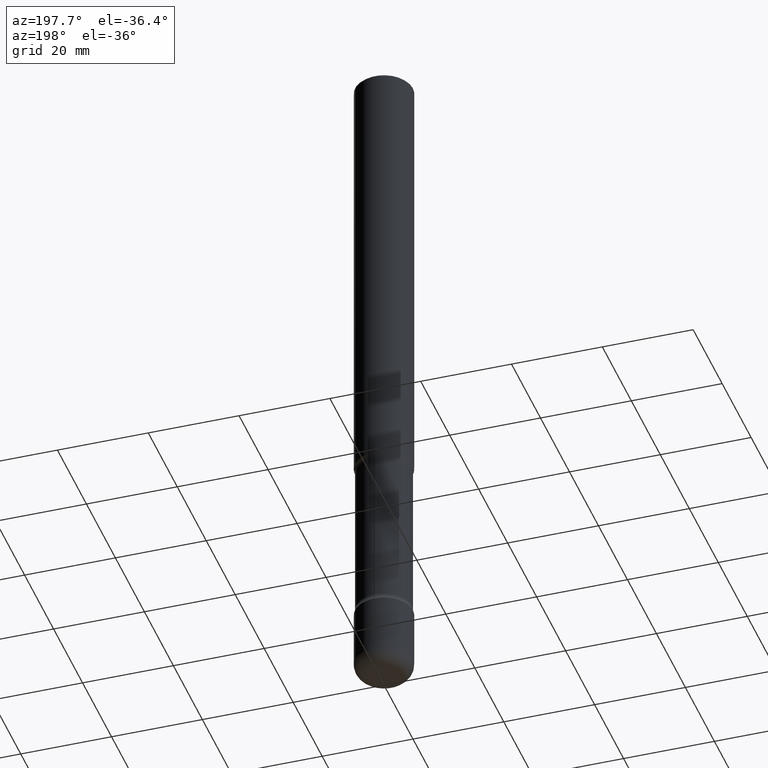
[diagram: clean part render]
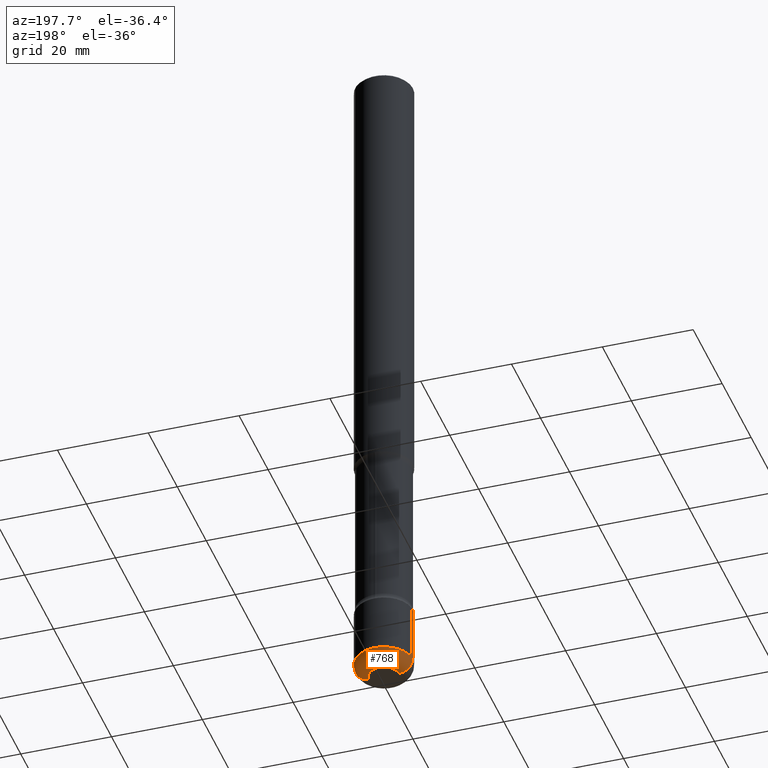
[diagram: same view with one face highlighted and labeled with its STEP entity id]
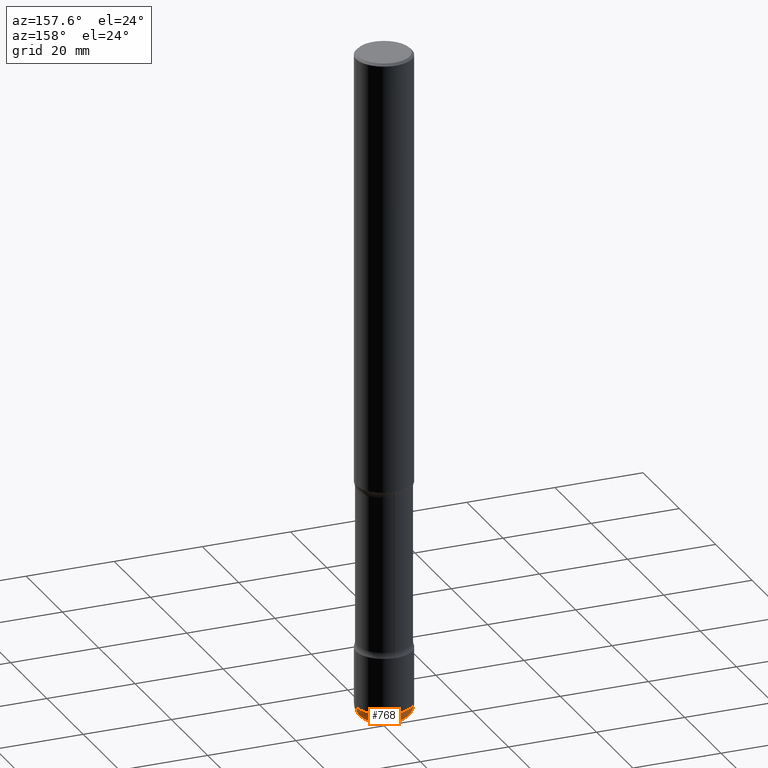
[diagram: same view with one face highlighted and labeled with its STEP entity id]
A machine part, auxiliary view. The second image highlights one B-rep face of the part: STEP entity #768.
A second angle (auxiliary view) of the same face is appended — the face is thin or edge-on in the first view.
In plain terms, the highlighted toroidal blend (fillet) surface has major radius 3.302 mm and minor (blend) radius 3.048 mm.
Its self-contained STEP definition (entity closure, byte-faithful):
#12 = EDGE_CURVE ( 'NONE', #544, #586, #197, .T. ) ;
#27 = EDGE_CURVE ( 'NONE', #544, #469, #364, .T. ) ;
#39 = CIRCLE ( 'NONE', #588, 0.1199999999999999262 ) ;
#78 = CARTESIAN_POINT ( 'NONE',  ( -0.2499999999999999722, -1.875355343299744876E-14, -5.880000000000000782 ) ) ;
#112 = EDGE_CURVE ( 'NONE', #586, #204, #39, .T. ) ;
#177 = DIRECTION ( 'NONE',  ( -2.445468806185136597E-29, 3.491481338843145583E-15, 1.000000000000000000 ) ) ;
#185 = TOROIDAL_SURFACE ( 'NONE', #771, 0.1300000000000000044, 0.1199999999999999123 ) ;
#197 = CIRCLE ( 'NONE', #651, 0.1300000000000000322 ) ;
#204 = VERTEX_POINT ( 'NONE', #78 ) ;
#216 = DIRECTION ( 'NONE',  ( -2.445468806185136597E-29, 3.491481338843145583E-15, 1.000000000000000000 ) ) ;
#220 = CARTESIAN_POINT ( 'NONE',  ( 1.467281283711081958E-28, -2.094888803305887271E-14, -6.000000000000000888 ) ) ;
#246 = CARTESIAN_POINT ( 'NONE',  ( -0.1300000000000000044, -1.960620471590956659E-14, -5.880000000000000782 ) ) ;
#272 = CIRCLE ( 'NONE', #641, 0.2500000000000000000 ) ;
#299 = CARTESIAN_POINT ( 'NONE',  ( 0.1300000000000000322, -2.185667318115808927E-14, -6.000000000000000888 ) ) ;
#305 = EDGE_LOOP ( 'NONE', ( #435, #632, #425, #760 ) ) ;
#313 = CARTESIAN_POINT ( 'NONE',  ( -0.1300000000000000322, -1.938936795478409599E-14, -6.000000000000000888 ) ) ;
#328 = EDGE_CURVE ( 'NONE', #469, #204, #272, .T. ) ;
#339 = DIRECTION ( 'NONE',  ( 1.000000000000000000, -6.982962677686262766E-15, 0.000000000000000000 ) ) ;
#346 = CARTESIAN_POINT ( 'NONE',  ( 1.437935658036860328E-28, -2.052991027239769923E-14, -5.880000000000000782 ) ) ;
#356 = DIRECTION ( 'NONE',  ( -2.445468806185136597E-29, 3.491481338843145583E-15, 1.000000000000000000 ) ) ;
#364 = CIRCLE ( 'NONE', #755, 0.1199999999999999262 ) ;
#401 = DIRECTION ( 'NONE',  ( -6.982962677686266711E-15, -1.000000000000000000, 3.491481338843145583E-15 ) ) ;
#409 = DIRECTION ( 'NONE',  ( 1.000000000000000000, -6.982962677686272233E-15, 0.000000000000000000 ) ) ;
#425 = ORIENTED_EDGE ( 'NONE', *, *, #328, .F. ) ;
#435 = ORIENTED_EDGE ( 'NONE', *, *, #12, .T. ) ;
#469 = VERTEX_POINT ( 'NONE', #481 ) ;
#481 = CARTESIAN_POINT ( 'NONE',  ( 0.2499999999999999722, -2.227565094181926275E-14, -5.880000000000000782 ) ) ;
#490 = DIRECTION ( 'NONE',  ( 7.105427357601001859E-15, 1.000000000000000000, -3.491481338843145583E-15 ) ) ;
#510 = DIRECTION ( 'NONE',  ( -1.000000000000000000, 7.105427357600995548E-15, 0.000000000000000000 ) ) ;
#544 = VERTEX_POINT ( 'NONE', #299 ) ;
#586 = VERTEX_POINT ( 'NONE', #313 ) ;
#588 = AXIS2_PLACEMENT_3D ( 'NONE', #246, #490, #510 ) ;
#617 = DIRECTION ( 'NONE',  ( 1.000000000000000000, -6.982962677686256455E-15, 0.000000000000000000 ) ) ;
#632 = ORIENTED_EDGE ( 'NONE', *, *, #112, .T. ) ;
#641 = AXIS2_PLACEMENT_3D ( 'NONE', #346, #216, #339 ) ;
#651 = AXIS2_PLACEMENT_3D ( 'NONE', #220, #177, #617 ) ;
#674 = DIRECTION ( 'NONE',  ( 1.000000000000000000, -6.982962677686265133E-15, 4.883557194083112340E-29 ) ) ;
#715 = CARTESIAN_POINT ( 'NONE',  ( 0.1300000000000000044, -2.143769542049691264E-14, -5.880000000000000782 ) ) ;
#743 = CARTESIAN_POINT ( 'NONE',  ( 1.437935658036860328E-28, -2.052991027239769923E-14, -5.880000000000000782 ) ) ;
#755 = AXIS2_PLACEMENT_3D ( 'NONE', #715, #401, #409 ) ;
#760 = ORIENTED_EDGE ( 'NONE', *, *, #27, .F. ) ;
#768 = ADVANCED_FACE ( 'NONE', ( #783 ), #185, .T. ) ;
#771 = AXIS2_PLACEMENT_3D ( 'NONE', #743, #356, #674 ) ;
#783 = FACE_OUTER_BOUND ( 'NONE', #305, .T. ) ;